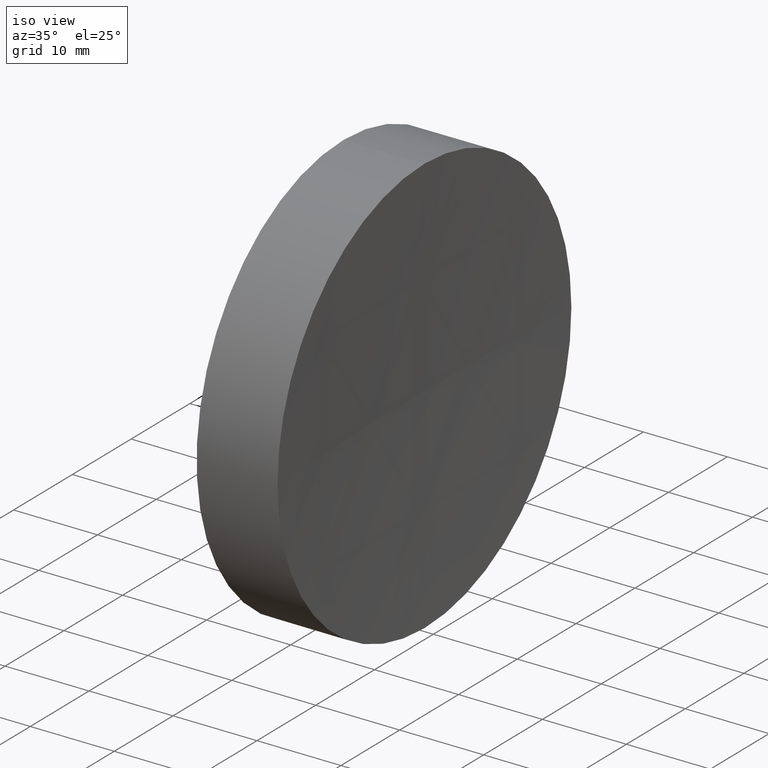
[diagram: clean part render]
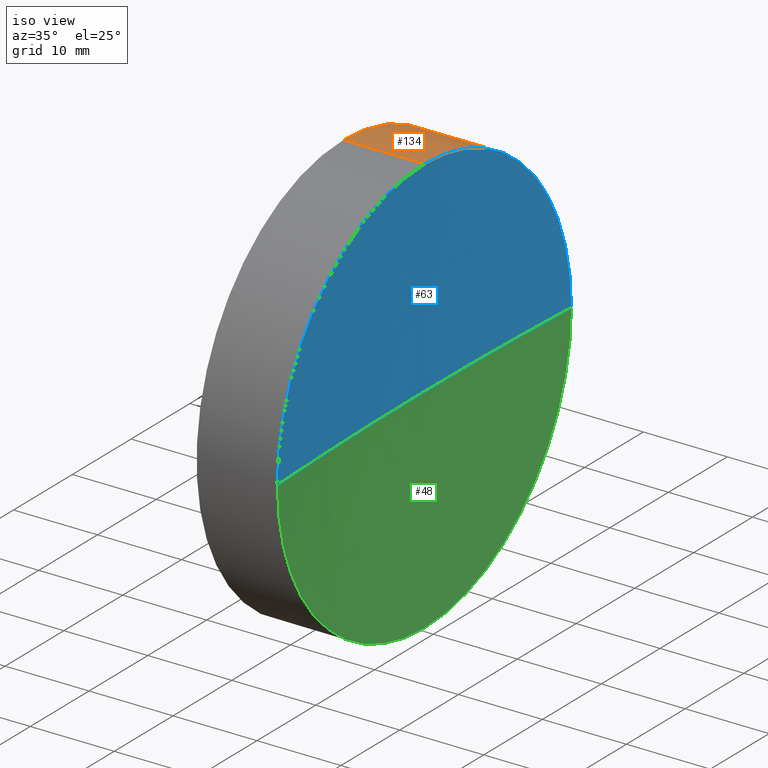
[diagram: same view with three faces highlighted in distinct colors, each labeled with its STEP entity id]
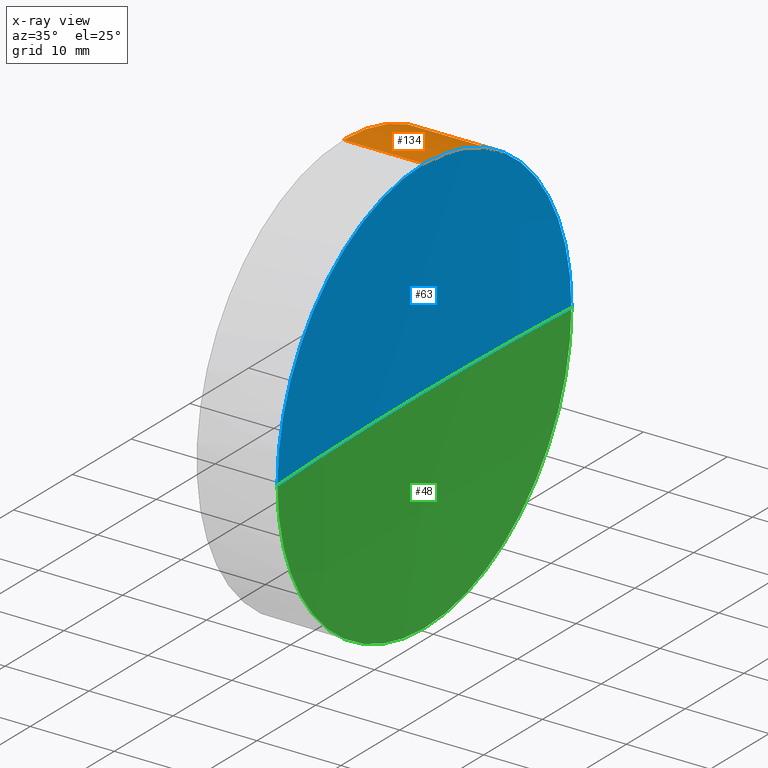
[diagram: x-ray of the same camera — body ghosted, the three highlighted faces saturated]
A machine part, iso view with three faces highlighted in distinct colors.
The next image is the same camera in x-ray (body ghosted, the three faces saturated) — at least one of them is partly hidden behind the body in this view.
Their STEP definitions:

[orange] entity #134 — the highlighted cylindrical surface (partial cylindrical patch) has radius 25 mm, axis along (-1, -0, -0).
#3 = ORIENTED_EDGE ( 'NONE', *, *, #5, .F. ) ;
#4 = LINE ( 'NONE', #80, #62 ) ;
#5 = EDGE_CURVE ( 'NONE', #164, #23, #97, .T. ) ;
#10 = AXIS2_PLACEMENT_3D ( 'NONE', #25, #86, #171 ) ;
#11 = CARTESIAN_POINT ( 'NONE',  ( 239.8107021831322600, 138.7560422467448700, 0.0000000000000000000 ) ) ;
#23 = VERTEX_POINT ( 'NONE', #147 ) ;
#25 = CARTESIAN_POINT ( 'NONE',  ( 217.9702860043302100, 138.7560422467448700, 0.0000000000000000000 ) ) ;
#27 = CARTESIAN_POINT ( 'NONE',  ( 239.8107021831322600, 138.7560422467448700, 0.0000000000000000000 ) ) ;
#28 = AXIS2_PLACEMENT_3D ( 'NONE', #151, #135, #50 ) ;
#29 = VECTOR ( 'NONE', #168, 1000.000000000000000 ) ;
#30 = CIRCLE ( 'NONE', #160, 24.99999999999999300 ) ;
#32 = EDGE_CURVE ( 'NONE', #180, #164, #4, .T. ) ;
#35 = CARTESIAN_POINT ( 'NONE',  ( 239.8107021831322600, 163.7560422467441600, 0.0000000000000000000 ) ) ;
#36 = LINE ( 'NONE', #149, #29 ) ;
#46 = CYLINDRICAL_SURFACE ( 'NONE', #10, 24.99999999999999300 ) ;
#50 = DIRECTION ( 'NONE',  ( 0.0000000000000000000, 0.0000000000000000000, 1.000000000000000000 ) ) ;
#62 = VECTOR ( 'NONE', #106, 1000.000000000000000 ) ;
#67 = EDGE_CURVE ( 'NONE', #137, #23, #36, .T. ) ;
#70 = CARTESIAN_POINT ( 'NONE',  ( 239.8107021831322600, 138.7560422467448700, -24.99999999999999300 ) ) ;
#71 = CIRCLE ( 'NONE', #89, 24.99999999999999300 ) ;
#75 = ORIENTED_EDGE ( 'NONE', *, *, #178, .T. ) ;
#78 = VERTEX_POINT ( 'NONE', #35 ) ;
#80 = CARTESIAN_POINT ( 'NONE',  ( 217.9702860043302100, 138.7560422467448700, 24.99999999999999300 ) ) ;
#86 = DIRECTION ( 'NONE',  ( -1.000000000000000000, -0.0000000000000000000, -0.0000000000000000000 ) ) ;
#89 = AXIS2_PLACEMENT_3D ( 'NONE', #11, #140, #152 ) ;
#92 = ORIENTED_EDGE ( 'NONE', *, *, #67, .T. ) ;
#97 = CIRCLE ( 'NONE', #28, 24.99999999999999300 ) ;
#106 = DIRECTION ( 'NONE',  ( -1.000000000000000000, -0.0000000000000000000, -0.0000000000000000000 ) ) ;
#111 = CARTESIAN_POINT ( 'NONE',  ( 239.8107021831322600, 138.7560422467448700, 24.99999999999999300 ) ) ;
#118 = FACE_OUTER_BOUND ( 'NONE', #181, .T. ) ;
#126 = DIRECTION ( 'NONE',  ( -1.000000000000000000, -0.0000000000000000000, -0.0000000000000000000 ) ) ;
#131 = EDGE_CURVE ( 'NONE', #180, #78, #30, .T. ) ;
#134 = ADVANCED_FACE ( 'NONE', ( #118 ), #46, .T. ) ;
#135 = DIRECTION ( 'NONE',  ( -1.000000000000000000, -0.0000000000000000000, -0.0000000000000000000 ) ) ;
#137 = VERTEX_POINT ( 'NONE', #70 ) ;
#140 = DIRECTION ( 'NONE',  ( -1.000000000000000000, -0.0000000000000000000, -0.0000000000000000000 ) ) ;
#142 = DIRECTION ( 'NONE',  ( 0.0000000000000000000, 0.0000000000000000000, 1.000000000000000000 ) ) ;
#147 = CARTESIAN_POINT ( 'NONE',  ( 230.1853110698390300, 138.7560422467448700, -24.99999999999999300 ) ) ;
#149 = CARTESIAN_POINT ( 'NONE',  ( 217.9702860043302100, 138.7560422467448700, -24.99999999999999300 ) ) ;
#151 = CARTESIAN_POINT ( 'NONE',  ( 230.1853110698390300, 138.7560422467448700, 0.0000000000000000000 ) ) ;
#152 = DIRECTION ( 'NONE',  ( 0.0000000000000000000, 0.0000000000000000000, 1.000000000000000000 ) ) ;
#160 = AXIS2_PLACEMENT_3D ( 'NONE', #27, #126, #142 ) ;
#162 = ORIENTED_EDGE ( 'NONE', *, *, #131, .T. ) ;
#164 = VERTEX_POINT ( 'NONE', #184 ) ;
#168 = DIRECTION ( 'NONE',  ( -1.000000000000000000, -0.0000000000000000000, -0.0000000000000000000 ) ) ;
#171 = DIRECTION ( 'NONE',  ( 0.0000000000000000000, 0.0000000000000000000, 1.000000000000000000 ) ) ;
#178 = EDGE_CURVE ( 'NONE', #78, #137, #71, .T. ) ;
#179 = ORIENTED_EDGE ( 'NONE', *, *, #32, .F. ) ;
#180 = VERTEX_POINT ( 'NONE', #111 ) ;
#181 = EDGE_LOOP ( 'NONE', ( #75, #92, #3, #179, #162 ) ) ;
#184 = CARTESIAN_POINT ( 'NONE',  ( 230.1853110698390300, 138.7560422467448700, 24.99999999999999300 ) ) ;

[blue] entity #63 — the highlighted spherical surface has radius 500 mm.
#2 = FACE_OUTER_BOUND ( 'NONE', #26, .T. ) ;
#6 = CARTESIAN_POINT ( 'NONE',  ( 739.1853110690867700, 138.7560422467448100, 0.0000000000000000000 ) ) ;
#7 = CARTESIAN_POINT ( 'NONE',  ( 239.8107021831322600, 138.7560422467448700, 0.0000000000000000000 ) ) ;
#13 = CIRCLE ( 'NONE', #138, 500.0000000000001100 ) ;
#19 = DIRECTION ( 'NONE',  ( 0.0000000000000000000, 1.224646799147353200E-016, -1.000000000000000000 ) ) ;
#20 = CARTESIAN_POINT ( 'NONE',  ( 239.1853110690867900, 138.7560422467448400, 0.0000000000000000000 ) ) ;
#21 = CARTESIAN_POINT ( 'NONE',  ( 239.8107021831322600, 113.7560422467455400, -3.061616997868293900E-015 ) ) ;
#26 = EDGE_LOOP ( 'NONE', ( #102, #173, #52, #31 ) ) ;
#27 = CARTESIAN_POINT ( 'NONE',  ( 239.8107021831322600, 138.7560422467448700, 0.0000000000000000000 ) ) ;
#30 = CIRCLE ( 'NONE', #160, 24.99999999999999300 ) ;
#31 = ORIENTED_EDGE ( 'NONE', *, *, #131, .F. ) ;
#35 = CARTESIAN_POINT ( 'NONE',  ( 239.8107021831322600, 163.7560422467441600, 0.0000000000000000000 ) ) ;
#42 = EDGE_CURVE ( 'NONE', #65, #68, #158, .T. ) ;
#43 = DIRECTION ( 'NONE',  ( -1.000000000000000000, -0.0000000000000000000, -0.0000000000000000000 ) ) ;
#51 = DIRECTION ( 'NONE',  ( 0.0000000000000000000, 1.000000000000000000, 1.224646799147353200E-016 ) ) ;
#52 = ORIENTED_EDGE ( 'NONE', *, *, #101, .F. ) ;
#63 = ADVANCED_FACE ( 'NONE', ( #2 ), #84, .F. ) ;
#65 = VERTEX_POINT ( 'NONE', #21 ) ;
#68 = VERTEX_POINT ( 'NONE', #20 ) ;
#73 = DIRECTION ( 'NONE',  ( 0.0000000000000000000, 0.0000000000000000000, 1.000000000000000000 ) ) ;
#78 = VERTEX_POINT ( 'NONE', #35 ) ;
#81 = DIRECTION ( 'NONE',  ( 0.0000000000000000000, 1.000000000000000000, 0.0000000000000000000 ) ) ;
#84 = SPHERICAL_SURFACE ( 'NONE', #96, 500.0000000000000000 ) ;
#85 = DIRECTION ( 'NONE',  ( 1.000000000000000000, 0.0000000000000000000, 0.0000000000000000000 ) ) ;
#94 = DIRECTION ( 'NONE',  ( 0.0000000000000000000, 0.0000000000000000000, -1.000000000000000000 ) ) ;
#95 = EDGE_CURVE ( 'NONE', #65, #180, #145, .T. ) ;
#96 = AXIS2_PLACEMENT_3D ( 'NONE', #6, #94, #81 ) ;
#101 = EDGE_CURVE ( 'NONE', #78, #68, #13, .T. ) ;
#102 = ORIENTED_EDGE ( 'NONE', *, *, #95, .F. ) ;
#108 = CARTESIAN_POINT ( 'NONE',  ( 739.1853110690867700, 138.7560422467448100, 0.0000000000000000000 ) ) ;
#111 = CARTESIAN_POINT ( 'NONE',  ( 239.8107021831322600, 138.7560422467448700, 24.99999999999999300 ) ) ;
#125 = CARTESIAN_POINT ( 'NONE',  ( 739.1853110690867700, 138.7560422467448100, 0.0000000000000000000 ) ) ;
#126 = DIRECTION ( 'NONE',  ( -1.000000000000000000, -0.0000000000000000000, -0.0000000000000000000 ) ) ;
#128 = AXIS2_PLACEMENT_3D ( 'NONE', #108, #19, #51 ) ;
#131 = EDGE_CURVE ( 'NONE', #180, #78, #30, .T. ) ;
#138 = AXIS2_PLACEMENT_3D ( 'NONE', #125, #156, #85 ) ;
#142 = DIRECTION ( 'NONE',  ( 0.0000000000000000000, 0.0000000000000000000, 1.000000000000000000 ) ) ;
#145 = CIRCLE ( 'NONE', #148, 24.99999999999999300 ) ;
#148 = AXIS2_PLACEMENT_3D ( 'NONE', #7, #43, #73 ) ;
#156 = DIRECTION ( 'NONE',  ( 0.0000000000000000000, 0.0000000000000000000, 1.000000000000000000 ) ) ;
#158 = CIRCLE ( 'NONE', #128, 500.0000000000000000 ) ;
#160 = AXIS2_PLACEMENT_3D ( 'NONE', #27, #126, #142 ) ;
#173 = ORIENTED_EDGE ( 'NONE', *, *, #42, .T. ) ;
#180 = VERTEX_POINT ( 'NONE', #111 ) ;

[green] entity #48 — the highlighted spherical surface has radius 500 mm.
#11 = CARTESIAN_POINT ( 'NONE',  ( 239.8107021831322600, 138.7560422467448700, 0.0000000000000000000 ) ) ;
#13 = CIRCLE ( 'NONE', #138, 500.0000000000001100 ) ;
#19 = DIRECTION ( 'NONE',  ( 0.0000000000000000000, 1.224646799147353200E-016, -1.000000000000000000 ) ) ;
#20 = CARTESIAN_POINT ( 'NONE',  ( 239.1853110690867900, 138.7560422467448400, 0.0000000000000000000 ) ) ;
#21 = CARTESIAN_POINT ( 'NONE',  ( 239.8107021831322600, 113.7560422467455400, -3.061616997868293900E-015 ) ) ;
#33 = DIRECTION ( 'NONE',  ( 0.0000000000000000000, 0.0000000000000000000, -1.000000000000000000 ) ) ;
#35 = CARTESIAN_POINT ( 'NONE',  ( 239.8107021831322600, 163.7560422467441600, 0.0000000000000000000 ) ) ;
#42 = EDGE_CURVE ( 'NONE', #65, #68, #158, .T. ) ;
#48 = ADVANCED_FACE ( 'NONE', ( #109 ), #77, .F. ) ;
#49 = AXIS2_PLACEMENT_3D ( 'NONE', #57, #154, #170 ) ;
#51 = DIRECTION ( 'NONE',  ( 0.0000000000000000000, 1.000000000000000000, 1.224646799147353200E-016 ) ) ;
#55 = ORIENTED_EDGE ( 'NONE', *, *, #178, .F. ) ;
#57 = CARTESIAN_POINT ( 'NONE',  ( 239.8107021831322600, 138.7560422467448700, 0.0000000000000000000 ) ) ;
#60 = AXIS2_PLACEMENT_3D ( 'NONE', #182, #33, #66 ) ;
#65 = VERTEX_POINT ( 'NONE', #21 ) ;
#66 = DIRECTION ( 'NONE',  ( 0.0000000000000000000, 1.000000000000000000, 0.0000000000000000000 ) ) ;
#68 = VERTEX_POINT ( 'NONE', #20 ) ;
#70 = CARTESIAN_POINT ( 'NONE',  ( 239.8107021831322600, 138.7560422467448700, -24.99999999999999300 ) ) ;
#71 = CIRCLE ( 'NONE', #89, 24.99999999999999300 ) ;
#77 = SPHERICAL_SURFACE ( 'NONE', #60, 500.0000000000000000 ) ;
#78 = VERTEX_POINT ( 'NONE', #35 ) ;
#85 = DIRECTION ( 'NONE',  ( 1.000000000000000000, 0.0000000000000000000, 0.0000000000000000000 ) ) ;
#89 = AXIS2_PLACEMENT_3D ( 'NONE', #11, #140, #152 ) ;
#90 = ORIENTED_EDGE ( 'NONE', *, *, #101, .T. ) ;
#101 = EDGE_CURVE ( 'NONE', #78, #68, #13, .T. ) ;
#108 = CARTESIAN_POINT ( 'NONE',  ( 739.1853110690867700, 138.7560422467448100, 0.0000000000000000000 ) ) ;
#109 = FACE_OUTER_BOUND ( 'NONE', #165, .T. ) ;
#122 = EDGE_CURVE ( 'NONE', #137, #65, #161, .T. ) ;
#125 = CARTESIAN_POINT ( 'NONE',  ( 739.1853110690867700, 138.7560422467448100, 0.0000000000000000000 ) ) ;
#128 = AXIS2_PLACEMENT_3D ( 'NONE', #108, #19, #51 ) ;
#137 = VERTEX_POINT ( 'NONE', #70 ) ;
#138 = AXIS2_PLACEMENT_3D ( 'NONE', #125, #156, #85 ) ;
#139 = ORIENTED_EDGE ( 'NONE', *, *, #122, .F. ) ;
#140 = DIRECTION ( 'NONE',  ( -1.000000000000000000, -0.0000000000000000000, -0.0000000000000000000 ) ) ;
#143 = ORIENTED_EDGE ( 'NONE', *, *, #42, .F. ) ;
#152 = DIRECTION ( 'NONE',  ( 0.0000000000000000000, 0.0000000000000000000, 1.000000000000000000 ) ) ;
#154 = DIRECTION ( 'NONE',  ( -1.000000000000000000, -0.0000000000000000000, -0.0000000000000000000 ) ) ;
#156 = DIRECTION ( 'NONE',  ( 0.0000000000000000000, 0.0000000000000000000, 1.000000000000000000 ) ) ;
#158 = CIRCLE ( 'NONE', #128, 500.0000000000000000 ) ;
#161 = CIRCLE ( 'NONE', #49, 24.99999999999999300 ) ;
#165 = EDGE_LOOP ( 'NONE', ( #143, #139, #55, #90 ) ) ;
#170 = DIRECTION ( 'NONE',  ( 0.0000000000000000000, 0.0000000000000000000, 1.000000000000000000 ) ) ;
#178 = EDGE_CURVE ( 'NONE', #78, #137, #71, .T. ) ;
#182 = CARTESIAN_POINT ( 'NONE',  ( 739.1853110690867700, 138.7560422467448100, 0.0000000000000000000 ) ) ;